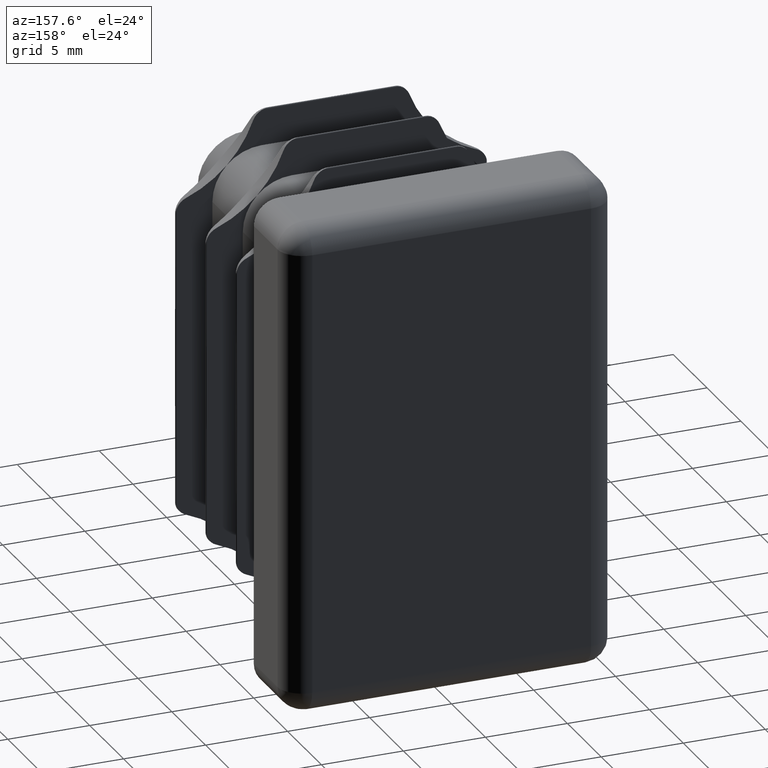
[diagram: clean part render]
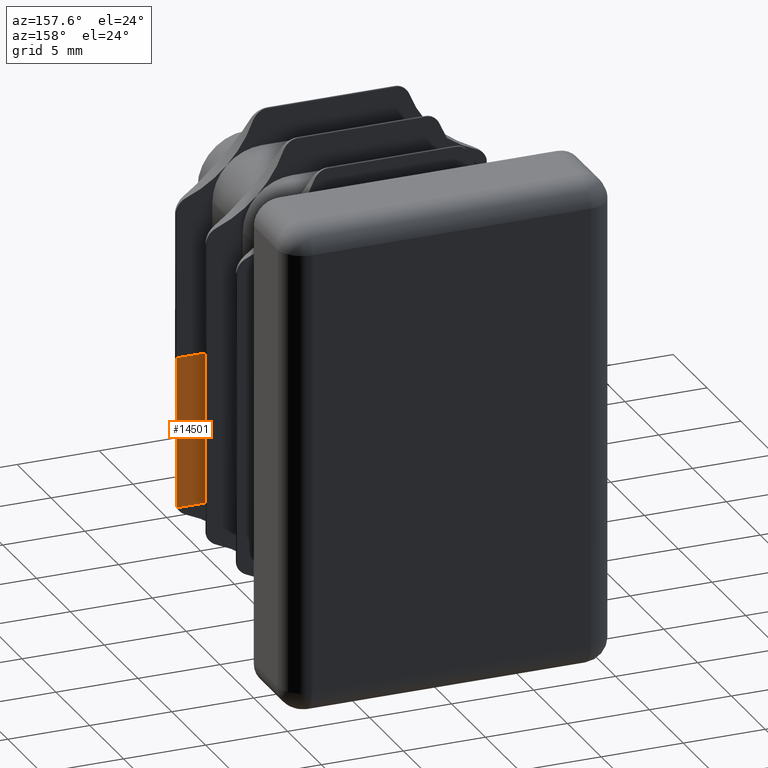
[diagram: same view with one face highlighted and labeled with its STEP entity id]
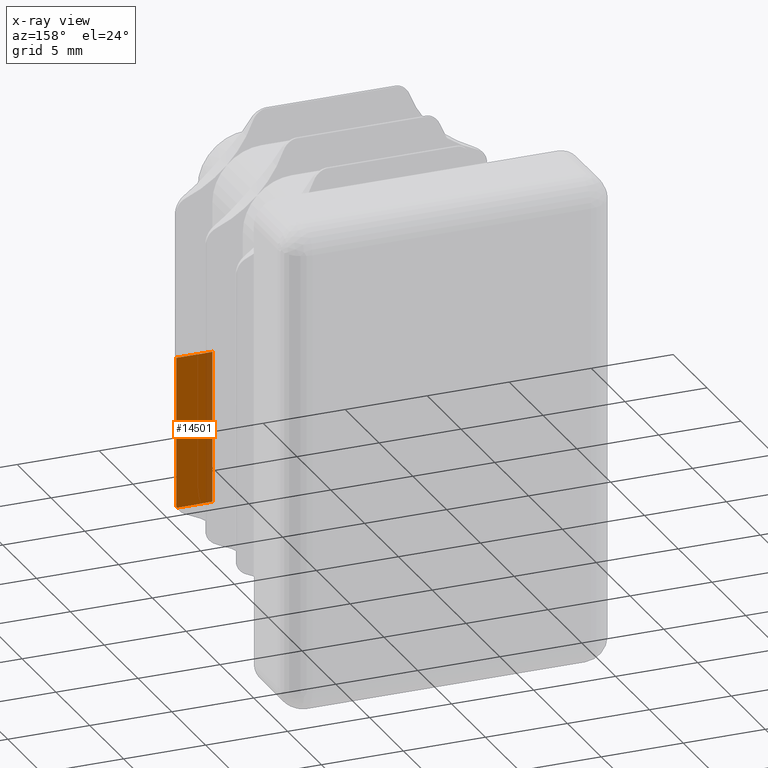
[diagram: x-ray of the same camera — body ghosted, the highlighted face saturated]
A machine part, auxiliary view. The second image highlights one B-rep face of the part: STEP entity #14501.
The next image is the same camera in x-ray: the body ghosted, the highlighted face saturated — about 19% of this face is hidden behind the body in this view.
In plain terms, the highlighted planar face has unit normal (0, -1, 0).
Its self-contained STEP definition (entity closure, byte-faithful):
#178 = ORIENTED_EDGE ( 'NONE', *, *, #16015, .F. ) ;
#577 = LINE ( 'NONE', #18105, #7251 ) ;
#933 = CARTESIAN_POINT ( 'NONE',  ( 9.409810287201452184, -12.79999999999999893, -9.249999999999998224 ) ) ;
#2249 = DIRECTION ( 'NONE',  ( -1.000000000000000000, 0.000000000000000000, 0.000000000000000000 ) ) ;
#3286 = CARTESIAN_POINT ( 'NONE',  ( 7.249999999999999112, -12.80000000000000071, -9.249999999999998224 ) ) ;
#3380 = DIRECTION ( 'NONE',  ( 0.000000000000000000, 1.000000000000000000, -0.000000000000000000 ) ) ;
#3397 = VERTEX_POINT ( 'NONE', #4319 ) ;
#4204 = EDGE_CURVE ( 'NONE', #3397, #19742, #14037, .T. ) ;
#4319 = CARTESIAN_POINT ( 'NONE',  ( 9.450000000000096989, -12.80000000000000071, 0.000000000000000000 ) ) ;
#4597 = CARTESIAN_POINT ( 'NONE',  ( 7.250000000000093259, -12.80000000000000071, 0.000000000000000000 ) ) ;
#4635 = ORIENTED_EDGE ( 'NONE', *, *, #14374, .F. ) ;
#6027 = DIRECTION ( 'NONE',  ( -1.000000000000000000, 0.000000000000000000, 0.000000000000000000 ) ) ;
#6175 = DIRECTION ( 'NONE',  ( 0.000000000000000000, -0.000000000000000000, -1.000000000000000000 ) ) ;
#6280 = AXIS2_PLACEMENT_3D ( 'NONE', #14164, #3380, #13886 ) ;
#6842 = CARTESIAN_POINT ( 'NONE',  ( 7.249999999999997335, -12.80000000000000071, 0.000000000000000000 ) ) ;
#7251 = VECTOR ( 'NONE', #6027, 1000.000000000000000 ) ;
#8480 = DIRECTION ( 'NONE',  ( -4.688441826964343682E-17, 0.000000000000000000, -1.000000000000000000 ) ) ;
#8761 = VECTOR ( 'NONE', #8480, 1000.000000000000000 ) ;
#8774 = LINE ( 'NONE', #9844, #11412 ) ;
#8967 = AXIS2_PLACEMENT_3D ( 'NONE', #4597, #12045, #6175 ) ;
#9049 = PLANE ( 'NONE',  #8967 ) ;
#9844 = CARTESIAN_POINT ( 'NONE',  ( 7.250000000000093259, -12.80000000000000071, -9.249999999999998224 ) ) ;
#9929 = EDGE_CURVE ( 'NONE', #14136, #13443, #8774, .T. ) ;
#10989 = ORIENTED_EDGE ( 'NONE', *, *, #9929, .T. ) ;
#11412 = VECTOR ( 'NONE', #2249, 1000.000000000000000 ) ;
#11737 = CARTESIAN_POINT ( 'NONE',  ( 9.450000000000096989, -12.79999999999999893, -9.147225513524871232 ) ) ;
#12045 = DIRECTION ( 'NONE',  ( 0.000000000000000000, -1.000000000000000000, 0.000000000000000000 ) ) ;
#12839 = EDGE_CURVE ( 'NONE', #19742, #14136, #16199, .T. ) ;
#13029 = CARTESIAN_POINT ( 'NONE',  ( 9.450000000000096989, -12.80000000000000071, 0.000000000000000000 ) ) ;
#13443 = VERTEX_POINT ( 'NONE', #3286 ) ;
#13886 = DIRECTION ( 'NONE',  ( 1.040834085586085203E-14, 0.000000000000000000, -1.000000000000000000 ) ) ;
#13896 = VECTOR ( 'NONE', #14169, 1000.000000000000000 ) ;
#14037 = LINE ( 'NONE', #13029, #8761 ) ;
#14136 = VERTEX_POINT ( 'NONE', #933 ) ;
#14164 = CARTESIAN_POINT ( 'NONE',  ( 8.500000000000097700, -12.79999999999999893, -8.834975613604949984 ) ) ;
#14169 = DIRECTION ( 'NONE',  ( -4.688441826964343682E-17, 0.000000000000000000, -1.000000000000000000 ) ) ;
#14374 = EDGE_CURVE ( 'NONE', #3397, #17126, #577, .T. ) ;
#14501 = ADVANCED_FACE ( 'NONE', ( #15191 ), #9049, .F. ) ;
#15191 = FACE_OUTER_BOUND ( 'NONE', #18745, .T. ) ;
#15229 = ORIENTED_EDGE ( 'NONE', *, *, #4204, .T. ) ;
#15431 = ORIENTED_EDGE ( 'NONE', *, *, #12839, .T. ) ;
#15856 = CARTESIAN_POINT ( 'NONE',  ( 7.250000000000093259, -12.80000000000000071, 0.000000000000000000 ) ) ;
#16015 = EDGE_CURVE ( 'NONE', #17126, #13443, #17983, .T. ) ;
#16199 = CIRCLE ( 'NONE', #6280, 0.9999999999999991118 ) ;
#17126 = VERTEX_POINT ( 'NONE', #6842 ) ;
#17983 = LINE ( 'NONE', #15856, #13896 ) ;
#18105 = CARTESIAN_POINT ( 'NONE',  ( 7.250000000000093259, -12.80000000000000071, 0.000000000000000000 ) ) ;
#18745 = EDGE_LOOP ( 'NONE', ( #15229, #15431, #10989, #178, #4635 ) ) ;
#19742 = VERTEX_POINT ( 'NONE', #11737 ) ;